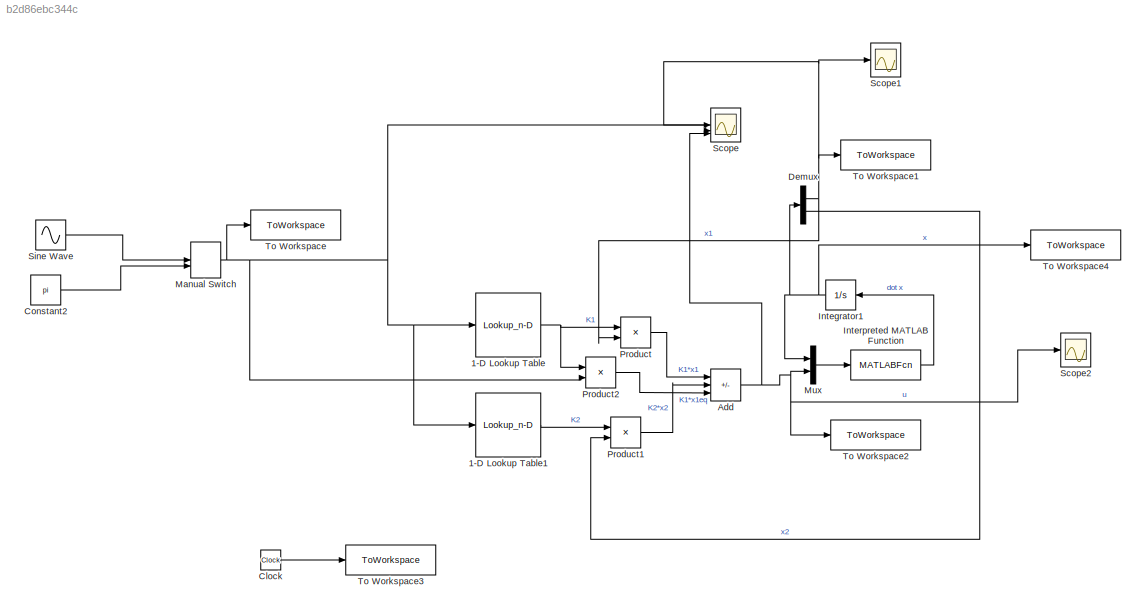
MODEL slx_b2d86ebc344c
KIND model
CONFIG AbsTol = auto
CONFIG EnableMultiTasking = off
CONFIG FixedStep = auto
CONFIG MaxStep = auto
CONFIG MinStep = auto
CONFIG RelTol = 1e-7
CONFIG SampleTimeConstraint = Unconstrained
CONFIG SolverName = VariableStepAuto
CONFIG StartTime = 0.0
CONFIG StopTime = 10
BLOCK [Lookup_n-D] 1-D Lookup Table
  BreakpointsForDimension1 = sigma
  InputPortMap = u0
  InternalRulePriority = Speed
  InterpMethod = Cubic spline
  NumberOfTableDimensions = 1
  RndMeth = Simplest
  Table = k1_sigma
BLOCK [Lookup_n-D] 1-D Lookup Table1
  BreakpointsForDimension1 = sigma
  InputPortMap = u0
  InternalRulePriority = Speed
  InterpMethod = Cubic spline
  NumberOfTableDimensions = 1
  RndMeth = Simplest
  Table = k2_sigma
BLOCK [Sum] Add
  IconShape = rectangular
  Inputs = --+
BLOCK [Clock] Clock
BLOCK [Constant] Constant2
  Value = pi
BLOCK [Demux] Demux
  Outputs = 2
BLOCK [Integrator] Integrator1
BLOCK [MATLABFcn] Interpreted MATLAB Function
  MATLABFcn = GS_sys
  OutputDimensions = 2
BLOCK [ManualSwitch] Manual Switch
  CurrentSetting = 0
BLOCK [Mux] Mux
  DisplayOption = bar
  Inputs = 2
BLOCK [Product] Product
BLOCK [Product] Product1
BLOCK [Product] Product2
BLOCK [Scope] Scope
  Floating = off
  NumInputPorts = 3
  ScopeSpecificationString = Simulink.scopes.TimeScopeBlockCfg('CurrentConfiguration', extmgr.ConfigurationSet(extmgr.Configuration('Core','General UI',true),extmgr.Configuration('Core','Source UI',true),extmgr.Configuration('Sources','WiredSimulink',true),extmgr.Configuration('Visuals','Time Domain',true,'SerializedDisplays',{struct('MinYLimReal','-12.59468','MaxYLimReal','40.67498','YLabelReal','','MinYLimMag','0.00000','Ma...<+1412ch>
BLOCK [Scope] Scope1
  Floating = off
  NumInputPorts = 1
  ScopeSpecificationString = Simulink.scopes.TimeScopeBlockCfg('CurrentConfiguration', extmgr.ConfigurationSet(extmgr.Configuration('Core','General UI',true),extmgr.Configuration('Core','Source UI',true),extmgr.Configuration('Sources','WiredSimulink',true,'DataLoggingVariableName','ScopeData1'),extmgr.Configuration('Visuals','Time Domain',true,'SerializedDisplays',{struct('MinYLimReal','-0.51898','MaxYLimReal','4.67083','YLab...<+1443ch>
BLOCK [Scope] Scope2
  Floating = off
  NumInputPorts = 1
  ScopeSpecificationString = Simulink.scopes.TimeScopeBlockCfg('CurrentConfiguration', extmgr.ConfigurationSet(extmgr.Configuration('Core','General UI',true),extmgr.Configuration('Core','Source UI',true),extmgr.Configuration('Sources','WiredSimulink',true,'DataLoggingVariableName','ScopeData2'),extmgr.Configuration('Visuals','Time Domain',true,'SerializedDisplays',{struct('MinYLimReal','-13.86052','MaxYLimReal','38.04453','YL...<+1446ch>
BLOCK [Sin] Sine Wave
  Amplitude = 3.14
  Frequency = 0.1
  SampleTime = 0
BLOCK [ToWorkspace] To Workspace
  FixptAsFi = on
  MaxDataPoints = inf
  SampleTime = -1
  VariableName = r
BLOCK [ToWorkspace] To Workspace1
  FixptAsFi = on
  MaxDataPoints = inf
  SampleTime = -1
  VariableName = y
BLOCK [ToWorkspace] To Workspace2
  FixptAsFi = on
  MaxDataPoints = inf
  SampleTime = -1
  VariableName = u
BLOCK [ToWorkspace] To Workspace3
  FixptAsFi = on
  MaxDataPoints = inf
  SampleTime = -1
  VariableName = t
BLOCK [ToWorkspace] To Workspace4
  FixptAsFi = on
  MaxDataPoints = inf
  SampleTime = -1
  VariableName = x
LINE 1-D Lookup Table1:1 -> Product1:1
NET 1-D Lookup Table:1 -> Product2:1, Product:1
NET Add:1 -> Mux:2, Scope2:1, Scope:3, To Workspace2:1
LINE Clock:1 -> To Workspace3:1
LINE Constant2:1 -> Manual Switch:2
NET Demux:1 -> Product:2, Scope1:1, Scope:1, To Workspace1:1
LINE Demux:2 -> Product1:2
NET Integrator1:1 -> Demux:1, Mux:1, To Workspace4:1
LINE Interpreted MATLAB Function:1 -> Integrator1:1
NET Manual Switch:1 -> 1-D Lookup Table1:1, 1-D Lookup Table:1, Product2:2, Scope:2, To Workspace:1
LINE Mux:1 -> Interpreted MATLAB Function:1
LINE Product1:1 -> Add:2
LINE Product2:1 -> Add:3
LINE Product:1 -> Add:1
LINE Sine Wave:1 -> Manual Switch:1
note: NET lines group one-source signal fan-out (src -> all destinations, sorted); 1:1 wires keep LINE
